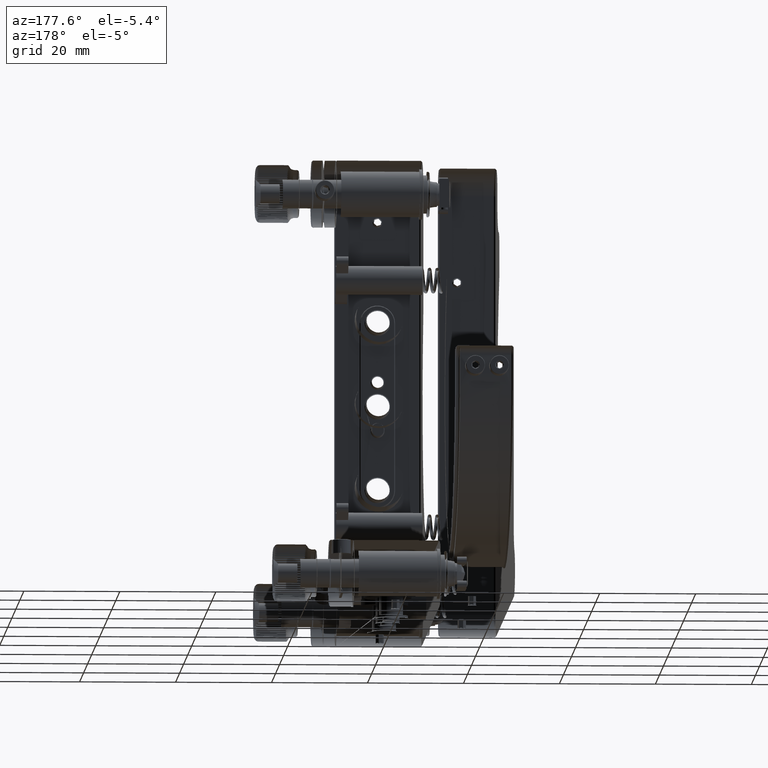
[diagram: clean part render]
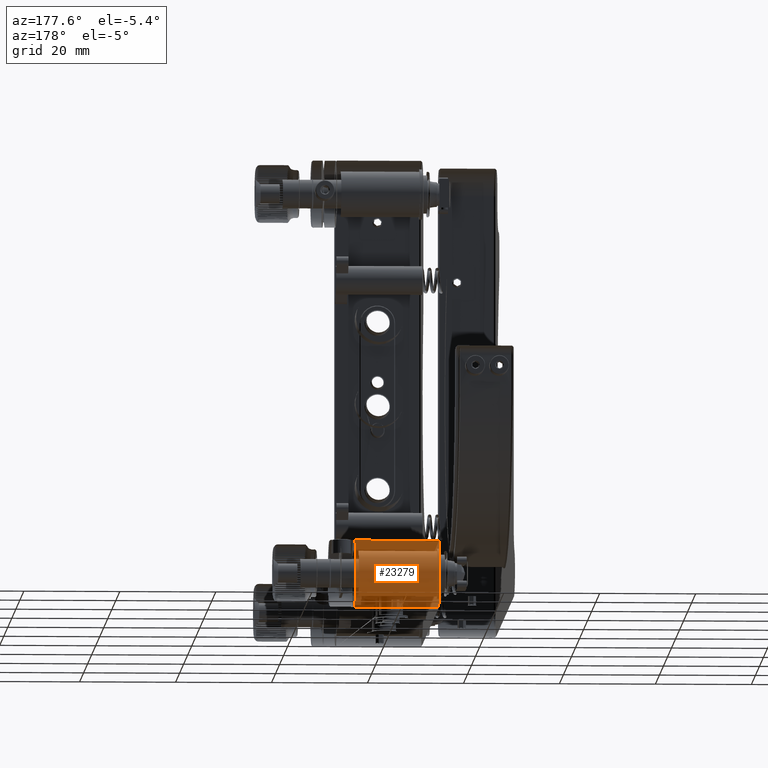
[diagram: same view with one face highlighted and labeled with its STEP entity id]
A machine part, auxiliary view. The second image highlights one B-rep face of the part: STEP entity #23279.
In plain terms, the highlighted cylindrical surface (edge-blend (fillet) strip) has radius 7 mm, axis along (1, 0, 0).
Its self-contained STEP definition (entity closure, byte-faithful):
#2621 = DIRECTION ( 'NONE',  ( 0.000000000000000000, 0.000000000000000000, -1.000000000000000000 ) ) ;
#3361 = VECTOR ( 'NONE', #52365, 1000.000000000000000 ) ;
#6670 = FACE_OUTER_BOUND ( 'NONE', #48012, .T. ) ;
#6837 = AXIS2_PLACEMENT_3D ( 'NONE', #22276, #42575, #39304 ) ;
#7251 = CARTESIAN_POINT ( 'NONE',  ( 8.749999999976694198, 43.79999999999999716, -50.80000000000946869 ) ) ;
#7299 = ORIENTED_EDGE ( 'NONE', *, *, #8976, .F. ) ;
#8976 = EDGE_CURVE ( 'NONE', #10723, #32798, #18573, .T. ) ;
#10528 = DIRECTION ( 'NONE',  ( 0.000000000000000000, 0.000000000000000000, -1.000000000000000000 ) ) ;
#10723 = VERTEX_POINT ( 'NONE', #7251 ) ;
#11561 = ORIENTED_EDGE ( 'NONE', *, *, #39218, .T. ) ;
#14480 = LINE ( 'NONE', #22882, #14632 ) ;
#14632 = VECTOR ( 'NONE', #43442, 1000.000000000000000 ) ;
#18573 = LINE ( 'NONE', #23171, #3361 ) ;
#19745 = CARTESIAN_POINT ( 'NONE',  ( -8.874999999993226751, 43.80000000000000426, -36.92499999998238280 ) ) ;
#19969 = CYLINDRICAL_SURFACE ( 'NONE', #47405, 6.999999999999999112 ) ;
#22276 = CARTESIAN_POINT ( 'NONE',  ( -8.750000000020463631, 43.79999999999999716, -43.79999999999999005 ) ) ;
#22882 = CARTESIAN_POINT ( 'NONE',  ( 9.000000000000001776, 43.79999999999999716, -36.79999999999999005 ) ) ;
#23171 = CARTESIAN_POINT ( 'NONE',  ( 9.000000000000001776, 43.79999999999999716, -50.79999999999999005 ) ) ;
#23232 = CIRCLE ( 'NONE', #33624, 6.999999999999999112 ) ;
#23279 = ADVANCED_FACE ( 'NONE', ( #6670 ), #19969, .F. ) ;
#24210 = VERTEX_POINT ( 'NONE', #41960 ) ;
#26495 = EDGE_CURVE ( 'NONE', #52255, #24210, #14480, .T. ) ;
#28091 = CARTESIAN_POINT ( 'NONE',  ( 9.000000000000001776, 43.79999999999999716, -43.79999999999999005 ) ) ;
#32798 = VERTEX_POINT ( 'NONE', #38114 ) ;
#33624 = AXIS2_PLACEMENT_3D ( 'NONE', #43026, #34665, #10528 ) ;
#34665 = DIRECTION ( 'NONE',  ( -1.000000000000000000, -0.000000000000000000, -0.000000000000000000 ) ) ;
#38114 = CARTESIAN_POINT ( 'NONE',  ( -8.750000000036658676, 43.79999999999999716, -50.79999999999053273 ) ) ;
#39218 = EDGE_CURVE ( 'NONE', #52255, #32798, #44905, .T. ) ;
#39304 = DIRECTION ( 'NONE',  ( 0.000000000000000000, 0.000000000000000000, -1.000000000000000000 ) ) ;
#39720 = DIRECTION ( 'NONE',  ( 1.000000000000000000, 0.000000000000000000, 0.000000000000000000 ) ) ;
#40949 = ORIENTED_EDGE ( 'NONE', *, *, #26495, .F. ) ;
#41960 = CARTESIAN_POINT ( 'NONE',  ( 8.749999999994173550, 43.79999999999999005, -36.79999999999999716 ) ) ;
#42575 = DIRECTION ( 'NONE',  ( -1.000000000000000000, -0.000000000000000000, -0.000000000000000000 ) ) ;
#43026 = CARTESIAN_POINT ( 'NONE',  ( 8.749999999999998224, 43.79999999999999716, -43.79999999999999005 ) ) ;
#43037 = ORIENTED_EDGE ( 'NONE', *, *, #50932, .F. ) ;
#43442 = DIRECTION ( 'NONE',  ( 1.000000000000000000, 0.000000000000000000, 0.000000000000000000 ) ) ;
#44905 = CIRCLE ( 'NONE', #6837, 7.000000000037934100 ) ;
#47405 = AXIS2_PLACEMENT_3D ( 'NONE', #28091, #39720, #2621 ) ;
#48012 = EDGE_LOOP ( 'NONE', ( #40949, #11561, #7299, #43037 ) ) ;
#50932 = EDGE_CURVE ( 'NONE', #24210, #10723, #23232, .T. ) ;
#52255 = VERTEX_POINT ( 'NONE', #19745 ) ;
#52365 = DIRECTION ( 'NONE',  ( -1.000000000000000000, 0.000000000000000000, 0.000000000000000000 ) ) ;